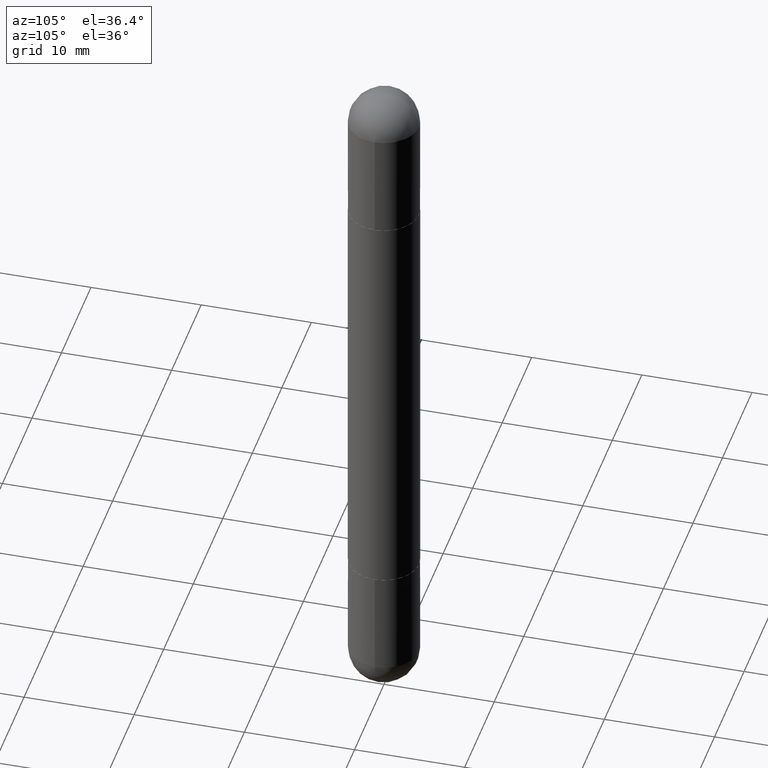
[diagram: clean part render]
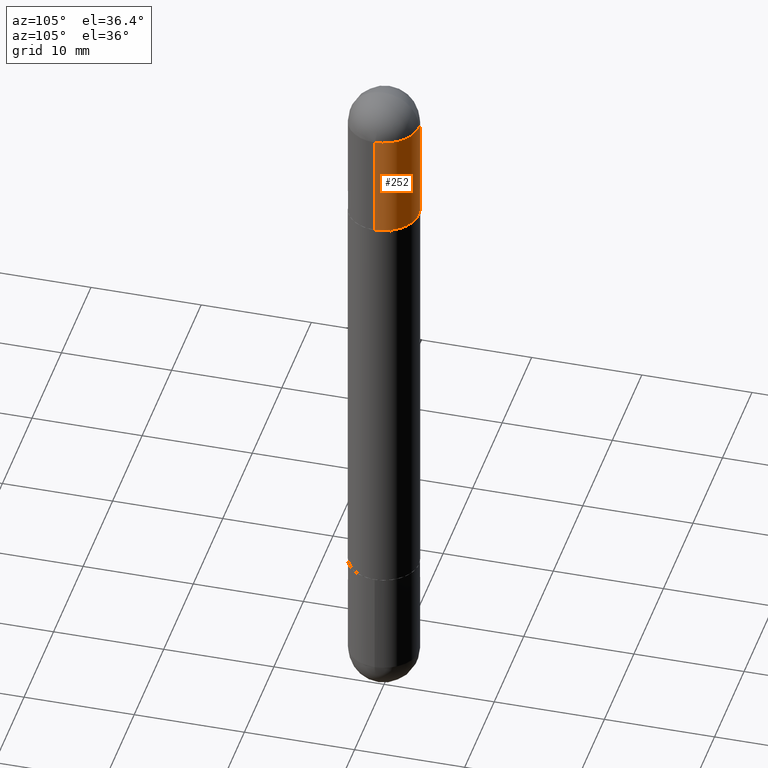
[diagram: same view with one face highlighted and labeled with its STEP entity id]
A machine part, auxiliary view. The second image highlights one B-rep face of the part: STEP entity #252.
In plain terms, the highlighted cylindrical surface (edge-blend (fillet) strip) has radius 3.175 mm, axis along (-0, 0, -1).
Its self-contained STEP definition (entity closure, byte-faithful):
#33 = VERTEX_POINT ( 'NONE', #181 ) ;
#43 = FACE_OUTER_BOUND ( 'NONE', #796, .T. ) ;
#67 = DIRECTION ( 'NONE',  ( 2.445468806185136597E-29, -3.491481338843145583E-15, 1.000000000000000000 ) ) ;
#76 = ORIENTED_EDGE ( 'NONE', *, *, #492, .T. ) ;
#78 = AXIS2_PLACEMENT_3D ( 'NONE', #161, #786, #103 ) ;
#100 = VECTOR ( 'NONE', #662, 39.37007874015748143 ) ;
#103 = DIRECTION ( 'NONE',  ( 1.000000000000000000, -6.982962677686266711E-15, 0.000000000000000000 ) ) ;
#114 = LINE ( 'NONE', #173, #119 ) ;
#119 = VECTOR ( 'NONE', #367, 39.37007874015748143 ) ;
#125 = CARTESIAN_POINT ( 'NONE',  ( 4.890937612370273194E-29, -6.982962677686291165E-15, -0.5000000000000006661 ) ) ;
#156 = VERTEX_POINT ( 'NONE', #448 ) ;
#161 = CARTESIAN_POINT ( 'NONE',  ( 0.000000000000000000, 0.000000000000000000, -2.500000000000000444 ) ) ;
#170 = VERTEX_POINT ( 'NONE', #341 ) ;
#173 = CARTESIAN_POINT ( 'NONE',  ( -0.1250000000000000000, 8.575622497214414453E-16, -2.500000000000000444 ) ) ;
#176 = DIRECTION ( 'NONE',  ( 1.000000000000000000, -6.982962677686270655E-15, 0.000000000000000000 ) ) ;
#177 = ORIENTED_EDGE ( 'NONE', *, *, #465, .F. ) ;
#181 = CARTESIAN_POINT ( 'NONE',  ( -0.1250000000000000000, -6.780053178997939591E-15, -0.5000000000000006661 ) ) ;
#182 = DIRECTION ( 'NONE',  ( 1.000000000000000000, -6.982962677686270655E-15, 0.000000000000000000 ) ) ;
#202 = CARTESIAN_POINT ( 'NONE',  ( 0.1250000000000000000, -7.855833012397075293E-15, -0.5000000000000006661 ) ) ;
#205 = CIRCLE ( 'NONE', #638, 0.1250000000000000000 ) ;
#252 = ADVANCED_FACE ( 'NONE', ( #43 ), #548, .T. ) ;
#274 = EDGE_CURVE ( 'NONE', #170, #529, #732, .T. ) ;
#280 = AXIS2_PLACEMENT_3D ( 'NONE', #816, #67, #621 ) ;
#318 = CIRCLE ( 'NONE', #280, 0.1250000000000000000 ) ;
#326 = ORIENTED_EDGE ( 'NONE', *, *, #393, .F. ) ;
#329 = AXIS2_PLACEMENT_3D ( 'NONE', #618, #807, #182 ) ;
#341 = CARTESIAN_POINT ( 'NONE',  ( 0.1250000000000000000, -8.510485763430165164E-15, -0.1250000000000004441 ) ) ;
#361 = ORIENTED_EDGE ( 'NONE', *, *, #446, .F. ) ;
#367 = DIRECTION ( 'NONE',  ( -2.445468806185136877E-29, 3.491481338843145188E-15, -1.000000000000000000 ) ) ;
#389 = ORIENTED_EDGE ( 'NONE', *, *, #274, .T. ) ;
#390 = CARTESIAN_POINT ( 'NONE',  ( 8.728703347108403340E-16, 0.1249999999999915623, -0.1250000000000000000 ) ) ;
#393 = EDGE_CURVE ( 'NONE', #170, #540, #318, .T. ) ;
#437 = DIRECTION ( 'NONE',  ( 2.445468806185136597E-29, -3.491481338843145583E-15, 1.000000000000000000 ) ) ;
#441 = CIRCLE ( 'NONE', #329, 0.1250000000000000000 ) ;
#446 = EDGE_CURVE ( 'NONE', #156, #33, #114, .T. ) ;
#448 = CARTESIAN_POINT ( 'NONE',  ( -0.1250000000000000000, -6.780053178997941168E-15, -0.1250000000000004441 ) ) ;
#465 = EDGE_CURVE ( 'NONE', #540, #156, #441, .T. ) ;
#484 = CARTESIAN_POINT ( 'NONE',  ( 0.1250000000000000000, -8.728703347107833388E-16, -2.500000000000000444 ) ) ;
#492 = EDGE_CURVE ( 'NONE', #529, #33, #205, .T. ) ;
#529 = VERTEX_POINT ( 'NONE', #202 ) ;
#540 = VERTEX_POINT ( 'NONE', #390 ) ;
#548 = CYLINDRICAL_SURFACE ( 'NONE', #78, 0.1250000000000000000 ) ;
#618 = CARTESIAN_POINT ( 'NONE',  ( 5.807988414689700538E-29, -8.292268179752471696E-15, -0.1250000000000004441 ) ) ;
#621 = DIRECTION ( 'NONE',  ( 1.000000000000000000, -6.982962677686270655E-15, 0.000000000000000000 ) ) ;
#638 = AXIS2_PLACEMENT_3D ( 'NONE', #125, #437, #176 ) ;
#662 = DIRECTION ( 'NONE',  ( -2.445468806185136877E-29, 3.491481338843145188E-15, -1.000000000000000000 ) ) ;
#732 = LINE ( 'NONE', #484, #100 ) ;
#786 = DIRECTION ( 'NONE',  ( -2.445468806185136597E-29, 3.491481338843145583E-15, -1.000000000000000000 ) ) ;
#796 = EDGE_LOOP ( 'NONE', ( #361, #177, #326, #389, #76 ) ) ;
#807 = DIRECTION ( 'NONE',  ( 2.445468806185136597E-29, -3.491481338843145583E-15, 1.000000000000000000 ) ) ;
#816 = CARTESIAN_POINT ( 'NONE',  ( 5.807988414689700538E-29, -8.292268179752471696E-15, -0.1250000000000004441 ) ) ;